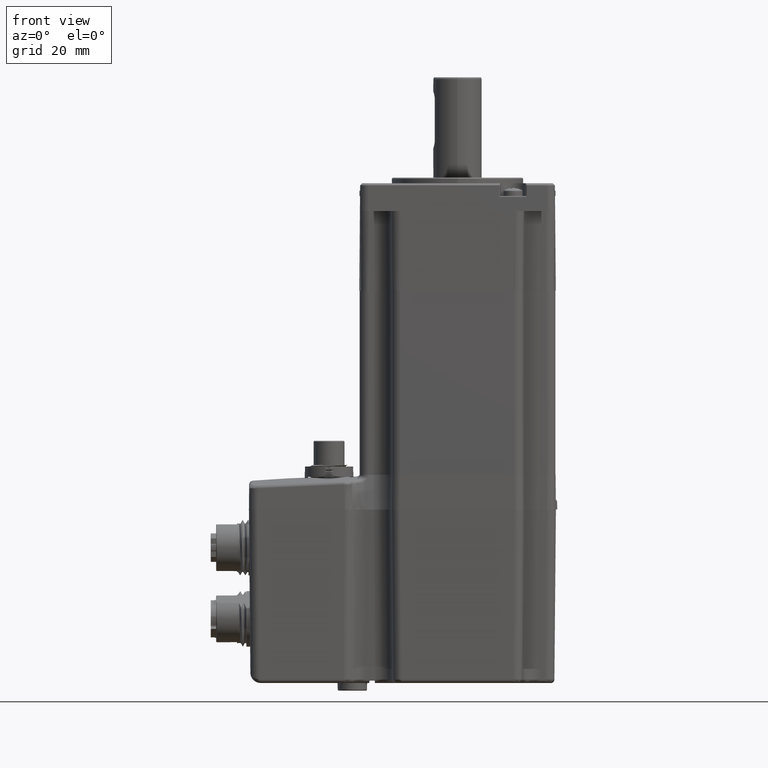
[diagram: clean part render]
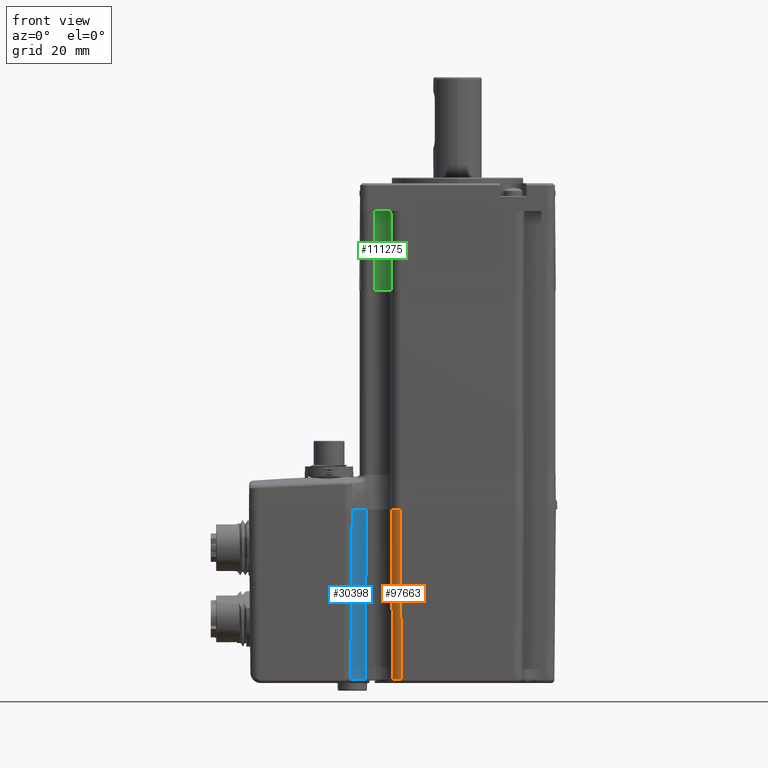
[diagram: same view with three faces highlighted in distinct colors, each labeled with its STEP entity id]
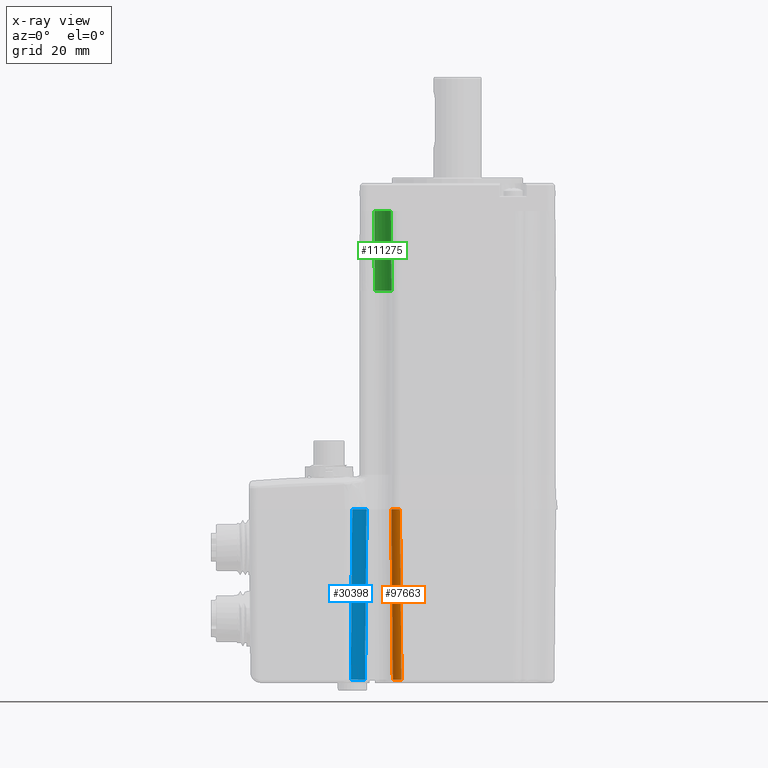
[diagram: x-ray of the same camera — body ghosted, the three highlighted faces saturated]
A machine part, front view with three faces highlighted in distinct colors.
The next image is the same camera in x-ray (body ghosted, the three faces saturated) — at least one of them is partly hidden behind the body in this view.
Their STEP definitions:

[orange] entity #97663 — the highlighted cylindrical surface (edge-blend (fillet) strip) has radius 2.5 mm, axis along (-0.0087, -0.0087, 0.9999).
#669 =( BOUNDED_CURVE ( )  B_SPLINE_CURVE ( 3, ( #31430, #60815, #41405, #79592 ),
 .UNSPECIFIED., .F., .T. ) 
 B_SPLINE_CURVE_WITH_KNOTS ( ( 4, 4 ),
 ( 3.469468359681593996E-16, 0.7853600871865117350 ),
 .UNSPECIFIED. ) 
 CURVE ( )  GEOMETRIC_REPRESENTATION_ITEM ( )  RATIONAL_B_SPLINE_CURVE ( ( 1.000000000000000000, 0.9492578786076020236, 0.9492578786076020236, 1.000000000000000000 ) ) 
 REPRESENTATION_ITEM ( '' )  );
#2066 = DIRECTION ( 'NONE',  ( -0.008726203243944239893, -0.008726203243944236423, 0.9999238504775704861 ) ) ;
#3336 = CARTESIAN_POINT ( 'NONE',  ( -18.40243356892835891, -26.70226811554214308, -102.0123407150203008 ) ) ;
#4582 = CARTESIAN_POINT ( 'NONE',  ( -18.65955553585465054, -26.08154474525007060, -102.0110715904551313 ) ) ;
#6490 = LINE ( 'NONE', #71061, #35357 ) ;
#6968 = VECTOR ( 'NONE', #71743, 1000.000000000000114 ) ;
#10318 = CARTESIAN_POINT ( 'NONE',  ( -19.08726867790757353, -27.30179729719379011, -53.00000000004468603 ) ) ;
#13377 = CARTESIAN_POINT ( 'NONE',  ( -18.65957600083882895, -25.40967119317842560, -102.0087265355430759 ) ) ;
#13487 = VERTEX_POINT ( 'NONE', #19289 ) ;
#13932 = CARTESIAN_POINT ( 'NONE',  ( -16.58755422955620773, -25.83755422955623260, -52.95637064503386426 ) ) ;
#13980 = ORIENTED_EDGE ( 'NONE', *, *, #38132, .F. ) ;
#15985 = LINE ( 'NONE', #63595, #6968 ) ;
#19289 = CARTESIAN_POINT ( 'NONE',  ( -16.15967119317839362, -27.90957600083885382, -102.0087265355430759 ) ) ;
#20981 = CARTESIAN_POINT ( 'NONE',  ( -18.05179729719337089, -28.33726867790783643, -53.00000000004468603 ) ) ;
#26556 =( BOUNDED_CURVE ( )  B_SPLINE_CURVE ( 3, ( #13377, #4582, #3336, #70407 ),
 .UNSPECIFIED., .F., .F. ) 
 B_SPLINE_CURVE_WITH_KNOTS ( ( 4, 4 ),
 ( 5.497825219993077717, 6.283185307179586232 ),
 .UNSPECIFIED. ) 
 CURVE ( )  GEOMETRIC_REPRESENTATION_ITEM ( )  RATIONAL_B_SPLINE_CURVE ( ( 1.000000000000000000, 0.9492578786076022457, 0.9492578786076022457, 1.000000000000000000 ) ) 
 REPRESENTATION_ITEM ( '' )  );
#31430 = CARTESIAN_POINT ( 'NONE',  ( -17.92735084223523856, -27.17735084223526343, -102.0123407150203008 ) ) ;
#32159 = DIRECTION ( 'NONE',  ( 0.9999619230641713097, 0.000000000000000000, 0.008726535498373986718 ) ) ;
#34547 = AXIS2_PLACEMENT_3D ( 'NONE', #13932, #2066, #32159 ) ;
#35357 = VECTOR ( 'NONE', #64126, 1000.000000000000114 ) ;
#36435 = EDGE_CURVE ( 'NONE', #44267, #66619, #26556, .T. ) ;
#38132 = EDGE_CURVE ( 'NONE', #75292, #13487, #6490, .T. ) ;
#41405 = CARTESIAN_POINT ( 'NONE',  ( -16.83154474525004218, -27.90955553585467186, -102.0110715904551313 ) ) ;
#44267 = VERTEX_POINT ( 'NONE', #88086 ) ;
#45686 = ORIENTED_EDGE ( 'NONE', *, *, #36435, .T. ) ;
#47960 = CARTESIAN_POINT ( 'NONE',  ( -16.58736387024675096, -28.33726867790760551, -53.00000000000002842 ) ) ;
#48029 = CARTESIAN_POINT ( 'NONE',  ( -17.92735084223523856, -27.17735084223526343, -102.0123407150203008 ) ) ;
#53729 = CARTESIAN_POINT ( 'NONE',  ( -16.58736387024675096, -28.33726867790760551, -53.00000000000002842 ) ) ;
#54360 = EDGE_CURVE ( 'NONE', #44267, #91655, #15985, .T. ) ;
#60815 = CARTESIAN_POINT ( 'NONE',  ( -17.45226811554211821, -27.65243356892838378, -102.0123407150203008 ) ) ;
#60942 = CYLINDRICAL_SURFACE ( 'NONE', #34547, 2.500000000000000444 ) ;
#63595 = CARTESIAN_POINT ( 'NONE',  ( -19.08745903721663595, -25.83755422955623260, -52.97818698377980695 ) ) ;
#64126 = DIRECTION ( 'NONE',  ( 0.008726203243944239893, 0.008726203243944238158, -0.9999238504775704861 ) ) ;
#66619 = VERTEX_POINT ( 'NONE', #48029 ) ;
#70407 = CARTESIAN_POINT ( 'NONE',  ( -17.92735084223523856, -27.17735084223526343, -102.0123407150203008 ) ) ;
#71061 = CARTESIAN_POINT ( 'NONE',  ( -16.58464736744988244, -28.33455217511034618, -53.31128038865480789 ) ) ;
#71743 = DIRECTION ( 'NONE',  ( -0.008726203243944239893, -0.008726203243944236423, 0.9999238504775704861 ) ) ;
#72929 = EDGE_CURVE ( 'NONE', #91655, #75292, #82041, .T. ) ;
#75292 = VERTEX_POINT ( 'NONE', #53729 ) ;
#79592 = CARTESIAN_POINT ( 'NONE',  ( -16.15967119317839362, -27.90957600083885382, -102.0087265355430759 ) ) ;
#82041 =( BOUNDED_CURVE ( )  B_SPLINE_CURVE ( 3, ( #115005, #10318, #20981, #47960 ),
 .UNSPECIFIED., .F., .F. ) 
 B_SPLINE_CURVE_WITH_KNOTS ( ( 4, 4 ),
 ( 5.497825219993076828, 7.068545394366253731 ),
 .UNSPECIFIED. ) 
 CURVE ( )  GEOMETRIC_REPRESENTATION_ITEM ( )  RATIONAL_B_SPLINE_CURVE ( ( 1.000000000000000000, 0.8047558030805739282, 0.8047558030805739282, 1.000000000000000000 ) ) 
 REPRESENTATION_ITEM ( '' )  );
#83733 = ORIENTED_EDGE ( 'NONE', *, *, #72929, .F. ) ;
#88086 = CARTESIAN_POINT ( 'NONE',  ( -18.65957600083882895, -25.40967119317842560, -102.0087265355430759 ) ) ;
#89760 = FACE_OUTER_BOUND ( 'NONE', #113679, .T. ) ;
#91655 = VERTEX_POINT ( 'NONE', #120547 ) ;
#97663 = ADVANCED_FACE ( 'NONE', ( #89760 ), #60942, .T. ) ;
#98802 = EDGE_CURVE ( 'NONE', #66619, #13487, #669, .T. ) ;
#107016 = ORIENTED_EDGE ( 'NONE', *, *, #54360, .F. ) ;
#113679 = EDGE_LOOP ( 'NONE', ( #107016, #45686, #117091, #13980, #83733 ) ) ;
#115005 = CARTESIAN_POINT ( 'NONE',  ( -19.08726867790717563, -25.83736387024717018, -53.00000000000002132 ) ) ;
#117091 = ORIENTED_EDGE ( 'NONE', *, *, #98802, .T. ) ;
#120547 = CARTESIAN_POINT ( 'NONE',  ( -19.08726867790717563, -25.83736387024717018, -53.00000000000002132 ) ) ;

[blue] entity #30398 — the highlighted cylindrical surface (edge-blend (fillet) strip) has radius 5 mm, axis along (-0.0087, 0.0087, -0.9999).
#1561 = VERTEX_POINT ( 'NONE', #91922 ) ;
#7783 = CARTESIAN_POINT ( 'NONE',  ( -26.22965958917892948, -20.40540834702430573, -53.00000000000002842 ) ) ;
#8303 = CARTESIAN_POINT ( 'NONE',  ( -30.31768151451064952, -22.52668596096111742, -52.99571514676301831 ) ) ;
#9904 = VECTOR ( 'NONE', #44653, 1000.000000000000114 ) ;
#14408 = B_SPLINE_CURVE_WITH_KNOTS ( 'NONE', 3,
 ( #85584, #114440, #46177, #16728 ),
 .UNSPECIFIED., .F., .F.,
 ( 4, 4 ),
 ( 0.000000000000000000, 1.000000000000000000 ),
 .UNSPECIFIED. ) ;
#14559 = LINE ( 'NONE', #101092, #9904 ) ;
#14609 = CARTESIAN_POINT ( 'NONE',  ( -26.24434175047822393, -20.40541912219977760, -53.00000000002235367 ) ) ;
#14683 = ORIENTED_EDGE ( 'NONE', *, *, #19820, .F. ) ;
#15622 = CYLINDRICAL_SURFACE ( 'NONE', #80472, 4.999999999999997335 ) ;
#16728 = CARTESIAN_POINT ( 'NONE',  ( -26.24434175047822393, -20.40541912219977760, -53.00000000002235367 ) ) ;
#17715 = LINE ( 'NONE', #8303, #36053 ) ;
#19820 = EDGE_CURVE ( 'NONE', #118812, #79992, #14559, .T. ) ;
#20359 = CARTESIAN_POINT ( 'NONE',  ( -29.24264073237492312, -20.49190591237670134, -102.0123407150203292 ) ) ;
#22890 = EDGE_CURVE ( 'NONE', #118812, #60233, #14408, .T. ) ;
#24675 = EDGE_CURVE ( 'NONE', #55904, #60233, #94612, .T. ) ;
#25063 = DIRECTION ( 'NONE',  ( -0.008726203243944227750, 0.008726203243944232954, -0.9999238504775704861 ) ) ;
#30398 = ADVANCED_FACE ( 'NONE', ( #102168 ), #15622, .F. ) ;
#31648 = CARTESIAN_POINT ( 'NONE',  ( -30.19280618576115671, -21.44207136576293848, -102.0123407150203008 ) ) ;
#33257 = EDGE_LOOP ( 'NONE', ( #105314, #68631, #51242, #14683, #103300, #41202 ) ) ;
#35904 = CARTESIAN_POINT ( 'NONE',  ( -29.36545239118181527, -21.17424694013084263, -53.00000000004468603 ) ) ;
#36053 = VECTOR ( 'NONE', #44073, 1000.000000000000000 ) ;
#40919 = EDGE_CURVE ( 'NONE', #51121, #1561, #110733, .T. ) ;
#41010 = CARTESIAN_POINT ( 'NONE',  ( -26.65735226624806842, -19.97771566995516324, -102.0087265355430759 ) ) ;
#41202 = ORIENTED_EDGE ( 'NONE', *, *, #24675, .F. ) ;
#44073 = DIRECTION ( 'NONE',  ( -0.008726203243944227750, 0.008726203243944232954, -0.9999238504775704861 ) ) ;
#44653 = DIRECTION ( 'NONE',  ( -0.008726203243944229485, 0.008726203243944248567, -0.9999238504775704861 ) ) ;
#46177 = CARTESIAN_POINT ( 'NONE',  ( -26.23944646993677665, -20.40541553103291861, -52.99999993723784542 ) ) ;
#47715 =( BOUNDED_CURVE ( )  B_SPLINE_CURVE ( 3, ( #31648, #20359, #115613, #41010 ),
 .UNSPECIFIED., .F., .F. ) 
 B_SPLINE_CURVE_WITH_KNOTS ( ( 4, 4 ),
 ( 0.000000000000000000, 0.7853600871865094035 ),
 .UNSPECIFIED. ) 
 CURVE ( )  GEOMETRIC_REPRESENTATION_ITEM ( )  RATIONAL_B_SPLINE_CURVE ( ( 1.000000000000000000, 0.9492578786076021347, 0.9492578786076021347, 1.000000000000000000 ) ) 
 REPRESENTATION_ITEM ( '' )  );
#51121 = VERTEX_POINT ( 'NONE', #97285 ) ;
#51242 = ORIENTED_EDGE ( 'NONE', *, *, #72989, .T. ) ;
#53867 = DIRECTION ( 'NONE',  ( 0.000000000000000000, -0.9999619230641713097, -0.008726535498373993657 ) ) ;
#55904 = VERTEX_POINT ( 'NONE', #58870 ) ;
#58870 = CARTESIAN_POINT ( 'NONE',  ( -30.31771890785874390, -22.52664856761302659, -53.00000000004469314 ) ) ;
#59305 = EDGE_CURVE ( 'NONE', #55904, #51121, #17715, .T. ) ;
#60233 = VERTEX_POINT ( 'NONE', #70854 ) ;
#66961 = CARTESIAN_POINT ( 'NONE',  ( -30.58029996903179537, -21.86439058538514502, -102.0122799427324907 ) ) ;
#68631 = ORIENTED_EDGE ( 'NONE', *, *, #40919, .T. ) ;
#70854 = CARTESIAN_POINT ( 'NONE',  ( -26.24434175047822393, -20.40541912219977760, -53.00000000002235367 ) ) ;
#72989 = EDGE_CURVE ( 'NONE', #1561, #79992, #47715, .T. ) ;
#74532 = CARTESIAN_POINT ( 'NONE',  ( -30.19280618576115671, -21.44207136576293848, -102.0123407150203008 ) ) ;
#79992 = VERTEX_POINT ( 'NONE', #83470 ) ;
#80472 = AXIS2_PLACEMENT_3D ( 'NONE', #110944, #25063, #53867 ) ;
#83470 = CARTESIAN_POINT ( 'NONE',  ( -26.65735226624806842, -19.97771566995516324, -102.0087265355430759 ) ) ;
#85584 = CARTESIAN_POINT ( 'NONE',  ( -26.22965958917892948, -20.40540834702430573, -53.00000000000002842 ) ) ;
#85791 = CARTESIAN_POINT ( 'NONE',  ( -30.39563376748525059, -21.64489894748703236, -102.0123407150203008 ) ) ;
#91922 = CARTESIAN_POINT ( 'NONE',  ( -30.19280618576115671, -21.44207136576293848, -102.0123407150203008 ) ) ;
#94016 = CARTESIAN_POINT ( 'NONE',  ( -30.74544153825398141, -22.09892593721778198, -102.0121588467930991 ) ) ;
#94612 =( BOUNDED_CURVE ( )  B_SPLINE_CURVE ( 3, ( #101137, #35904, #112357, #14609 ),
 .UNSPECIFIED., .F., .F. ) 
 B_SPLINE_CURVE_WITH_KNOTS ( ( 4, 4 ),
 ( 6.111292359336602864, 7.065609441598143192 ),
 .UNSPECIFIED. ) 
 CURVE ( )  GEOMETRIC_REPRESENTATION_ITEM ( )  RATIONAL_B_SPLINE_CURVE ( ( 1.000000000000000000, 0.9255356445339639748, 0.9255356445339639748, 1.000000000000000000 ) ) 
 REPRESENTATION_ITEM ( '' )  );
#97285 = CARTESIAN_POINT ( 'NONE',  ( -30.74544153825398141, -22.09892593721778198, -102.0121588467930991 ) ) ;
#101092 = CARTESIAN_POINT ( 'NONE',  ( -26.22911572023089022, -20.40595221597234143, -52.93767879139691956 ) ) ;
#101137 = CARTESIAN_POINT ( 'NONE',  ( -30.31771890785874390, -22.52664856761302659, -53.00000000004469314 ) ) ;
#102168 = FACE_OUTER_BOUND ( 'NONE', #33257, .T. ) ;
#103300 = ORIENTED_EDGE ( 'NONE', *, *, #22890, .T. ) ;
#105314 = ORIENTED_EDGE ( 'NONE', *, *, #59305, .T. ) ;
#110733 =( BOUNDED_CURVE ( )  B_SPLINE_CURVE ( 3, ( #94016, #66961, #85791, #74532 ),
 .UNSPECIFIED., .F., .F. ) 
 B_SPLINE_CURVE_WITH_KNOTS ( ( 4, 4 ),
 ( 6.111292359336603752, 6.283185307179586232 ),
 .UNSPECIFIED. ) 
 CURVE ( )  GEOMETRIC_REPRESENTATION_ITEM ( )  RATIONAL_B_SPLINE_CURVE ( ( 1.000000000000000000, 0.9975392498547993592, 0.9975392498547993592, 1.000000000000000000 ) ) 
 REPRESENTATION_ITEM ( '' )  );
#110944 = CARTESIAN_POINT ( 'NONE',  ( -26.22977196246371179, -25.40510558906038341, -53.05650938050505516 ) ) ;
#112357 = CARTESIAN_POINT ( 'NONE',  ( -27.89841758357661661, -20.41028620641414548, -53.00000000004468603 ) ) ;
#114440 = CARTESIAN_POINT ( 'NONE',  ( -26.23455302955805024, -20.40540834757148758, -52.99999993729910130 ) ) ;
#115613 = CARTESIAN_POINT ( 'NONE',  ( -28.00116076534390430, -19.97769520497099194, -102.0110715904551313 ) ) ;
#118812 = VERTEX_POINT ( 'NONE', #7783 ) ;

[green] entity #111275 — the highlighted cylindrical surface (edge-blend (fillet) strip) has radius 4.8 mm, axis along (0.0087, 0.0087, -0.9999).
#1037 = VECTOR ( 'NONE', #73509, 1000.000000000000114 ) ;
#1889 = AXIS2_PLACEMENT_3D ( 'NONE', #8138, #102878, #16950 ) ;
#2242 = EDGE_LOOP ( 'NONE', ( #107313, #74217, #108420, #37877 ) ) ;
#2597 = CARTESIAN_POINT ( 'NONE',  ( -19.19999999999953388, -21.18810505097173902, 32.99999999999996447 ) ) ;
#7085 = LINE ( 'NONE', #110588, #1037 ) ;
#8138 = CARTESIAN_POINT ( 'NONE',  ( -23.99945174083414656, -23.99945174083551791, 32.91623163837918753 ) ) ;
#10734 = CARTESIAN_POINT ( 'NONE',  ( -23.99981723070755990, -19.20000000000089813, 32.99999999999996447 ) ) ;
#12975 = CARTESIAN_POINT ( 'NONE',  ( -20.98738709178294570, -18.99928204081343353, 9.999999999999968026 ) ) ;
#14236 = CARTESIAN_POINT ( 'NONE',  ( -23.79920190844596206, -19.00190596703989598, 9.999999999999971578 ) ) ;
#16950 = DIRECTION ( 'NONE',  ( 0.000000000000000000, 0.9999619230641711987, 0.008726535498373638039 ) ) ;
#19176 = EDGE_CURVE ( 'NONE', #94323, #29242, #35308, .T. ) ;
#19491 = VECTOR ( 'NONE', #42714, 1000.000000000000114 ) ;
#22047 = CARTESIAN_POINT ( 'NONE',  ( -19.19999999999952323, -23.99981723070890283, 32.99999999999996447 ) ) ;
#24268 = VERTEX_POINT ( 'NONE', #101416 ) ;
#29242 = VERTEX_POINT ( 'NONE', #62898 ) ;
#35308 =( BOUNDED_CURVE ( )  B_SPLINE_CURVE ( 3, ( #72459, #100162, #12975, #14236 ),
 .UNSPECIFIED., .F., .T. ) 
 B_SPLINE_CURVE_WITH_KNOTS ( ( 4, 4 ),
 ( 5.497825219993076828, 7.068545394366095636 ),
 .UNSPECIFIED. ) 
 CURVE ( )  GEOMETRIC_REPRESENTATION_ITEM ( )  RATIONAL_B_SPLINE_CURVE ( ( 1.000000000000000000, 0.8047558030806112317, 0.8047558030806112317, 1.000000000000000000 ) ) 
 REPRESENTATION_ITEM ( '' )  );
#37877 = ORIENTED_EDGE ( 'NONE', *, *, #99712, .F. ) ;
#41708 = EDGE_CURVE ( 'NONE', #24268, #50231, #67452, .T. ) ;
#42714 = DIRECTION ( 'NONE',  ( 0.008726203243944210403, 0.008726203243944267648, -0.9999238504775704861 ) ) ;
#46608 = EDGE_CURVE ( 'NONE', #50231, #94323, #111023, .T. ) ;
#50231 = VERTEX_POINT ( 'NONE', #114178 ) ;
#62152 = CARTESIAN_POINT ( 'NONE',  ( -19.00190585406195254, -23.79920476146977748, 9.999999999999971578 ) ) ;
#62898 = CARTESIAN_POINT ( 'NONE',  ( -23.79920190844596206, -19.00190596703989598, 9.999999999999971578 ) ) ;
#67452 =( BOUNDED_CURVE ( )  B_SPLINE_CURVE ( 3, ( #10734, #117877, #2597, #22047 ),
 .UNSPECIFIED., .F., .T. ) 
 B_SPLINE_CURVE_WITH_KNOTS ( ( 4, 4 ),
 ( 5.497825219993076828, 7.068545394366095636 ),
 .UNSPECIFIED. ) 
 CURVE ( )  GEOMETRIC_REPRESENTATION_ITEM ( )  RATIONAL_B_SPLINE_CURVE ( ( 1.000000000000000000, 0.8047558030806112317, 0.8047558030806112317, 1.000000000000000000 ) ) 
 REPRESENTATION_ITEM ( '' )  );
#72459 = CARTESIAN_POINT ( 'NONE',  ( -19.00190585406195254, -23.79920476146977748, 9.999999999999971578 ) ) ;
#73509 = DIRECTION ( 'NONE',  ( -0.008726203243944210403, -0.008726203243944269383, 0.9999238504775704861 ) ) ;
#74217 = ORIENTED_EDGE ( 'NONE', *, *, #46608, .F. ) ;
#83974 = CYLINDRICAL_SURFACE ( 'NONE', #1889, 4.800000000000001599 ) ;
#94323 = VERTEX_POINT ( 'NONE', #62152 ) ;
#99178 = CARTESIAN_POINT ( 'NONE',  ( -18.99891655093867371, -23.79873378164804976, 9.958119008771378233 ) ) ;
#99712 = EDGE_CURVE ( 'NONE', #29242, #24268, #7085, .T. ) ;
#100162 = CARTESIAN_POINT ( 'NONE',  ( -18.99928204081207639, -20.98738709178429218, 9.999999999999968026 ) ) ;
#101416 = CARTESIAN_POINT ( 'NONE',  ( -23.99981723070755990, -19.20000000000089813, 32.99999999999996447 ) ) ;
#102878 = DIRECTION ( 'NONE',  ( 0.008726203243944208668, 0.008726203243944269383, -0.9999238504775704861 ) ) ;
#107313 = ORIENTED_EDGE ( 'NONE', *, *, #19176, .F. ) ;
#108420 = ORIENTED_EDGE ( 'NONE', *, *, #41708, .F. ) ;
#110588 = CARTESIAN_POINT ( 'NONE',  ( -23.99945174083416433, -19.19963451012749900, 32.95811900877138356 ) ) ;
#111023 = LINE ( 'NONE', #99178, #19491 ) ;
#111275 = ADVANCED_FACE ( 'NONE', ( #121551 ), #83974, .F. ) ;
#114178 = CARTESIAN_POINT ( 'NONE',  ( -19.19999999999952323, -23.99981723070890283, 32.99999999999996447 ) ) ;
#117877 = CARTESIAN_POINT ( 'NONE',  ( -21.18810505097039965, -19.20000000000088747, 32.99999999999996447 ) ) ;
#121551 = FACE_OUTER_BOUND ( 'NONE', #2242, .T. ) ;